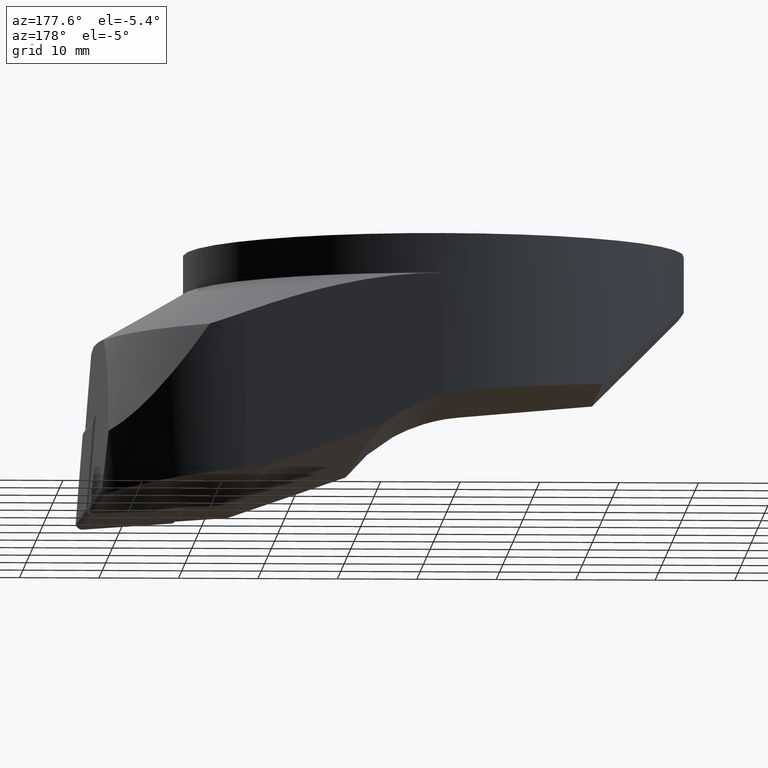
[diagram: clean part render]
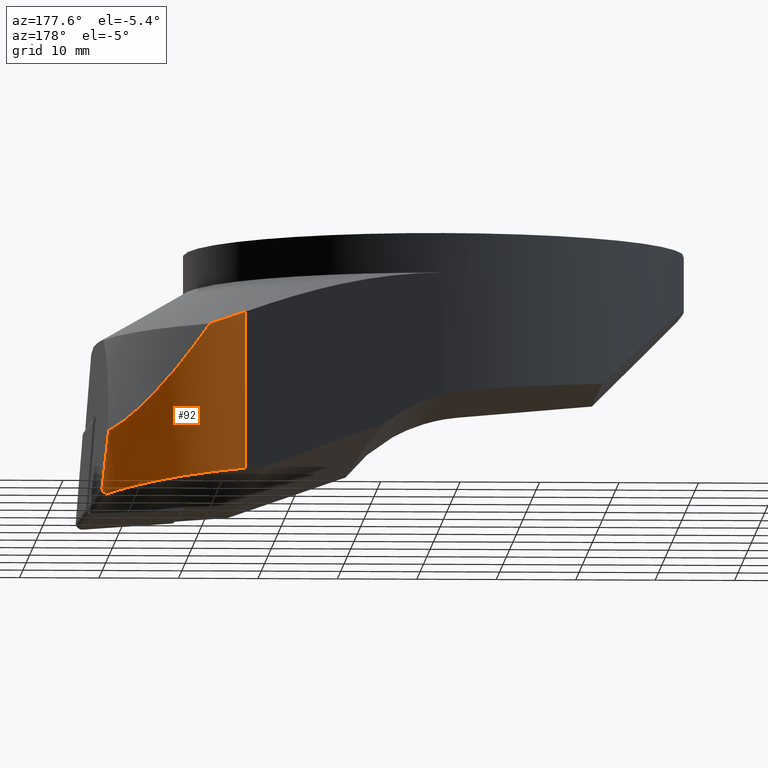
[diagram: same view with one face highlighted and labeled with its STEP entity id]
A machine part, auxiliary view. The second image highlights one B-rep face of the part: STEP entity #92.
In plain terms, the highlighted cylindrical surface (partial cylindrical patch) has radius 20 mm, axis along (-0, 0, 1).
Its self-contained STEP definition (entity closure, byte-faithful):
#92=ADVANCED_FACE('',(#142),#143,.T.);
#142=FACE_OUTER_BOUND('',#206,.T.);
#143=CYLINDRICAL_SURFACE('',#207,20.0);
#206=EDGE_LOOP('',(#388,#389,#390,#391,#392,#393,#394));
#207=AXIS2_PLACEMENT_3D('',#395,#396,#397);
#388=ORIENTED_EDGE('',*,*,#561,.F.);
#389=ORIENTED_EDGE('',*,*,#566,.F.);
#390=ORIENTED_EDGE('',*,*,#567,.F.);
#391=ORIENTED_EDGE('',*,*,#568,.F.);
#392=ORIENTED_EDGE('',*,*,#543,.T.);
#393=ORIENTED_EDGE('',*,*,#569,.F.);
#394=ORIENTED_EDGE('',*,*,#570,.F.);
#395=CARTESIAN_POINT('',(25.0,11.5,-27.9223097986086));
#396=DIRECTION('',(-0.0,0.0,1.0));
#397=DIRECTION('',(0.859167550434077,-0.51169436217444,0.0));
#543=EDGE_CURVE('',#656,#654,#657,.T.);
#561=EDGE_CURVE('',#687,#689,#690,.T.);
#566=EDGE_CURVE('',#696,#687,#698,.T.);
#567=EDGE_CURVE('',#699,#696,#700,.T.);
#568=EDGE_CURVE('',#656,#699,#701,.T.);
#569=EDGE_CURVE('',#702,#654,#703,.T.);
#570=EDGE_CURVE('',#689,#702,#704,.T.);
#654=VERTEX_POINT('',#820);
#656=VERTEX_POINT('',#823);
#657=ELLIPSE('',#824,218.390452394196,20.0);
#687=VERTEX_POINT('',#870);
#689=VERTEX_POINT('',#873);
#690=ELLIPSE('',#874,20.1659385352381,20.0);
#696=VERTEX_POINT('',#882);
#698=LINE('',#893,#894);
#699=VERTEX_POINT('',#895);
#700=B_SPLINE_CURVE_WITH_KNOTS('',3,(#896,#897,#898,#899,#900,#901),.UNSPECIFIED.,.F.,.F.,(4,2,4),(3.85715846001028,5.74178911328001,8.4775333503241),.UNSPECIFIED.);
#701=B_SPLINE_CURVE_WITH_KNOTS('',3,(#902,#903,#904,#905,#906,#907,#908,#909,#910,#911,#912,#913,#914,#915,#916,#917),.UNSPECIFIED.,.F.,.F.,(4,2,2,2,2,2,2,4),(26.1109510316236,27.6243507450446,29.7536378607249,31.8829249764053,35.5950819891459,39.3072390018865,43.019396014627,45.5276441190841),.UNSPECIFIED.);
#702=VERTEX_POINT('',#918);
#703=B_SPLINE_CURVE_WITH_KNOTS('',3,(#919,#920,#921,#922,#923,#924,#925,#926,#927,#928,#929,#930,#931,#932,#933),.UNSPECIFIED.,.F.,.F.,(4,2,2,2,2,3,4),(10.0468372992845,10.3288591227943,10.6075162455719,10.8861733683495,11.0519833790841,11.2177933898187,11.3271584205648),.UNSPECIFIED.);
#704=B_SPLINE_CURVE_WITH_KNOTS('',3,(#934,#935,#936,#937),.UNSPECIFIED.,.F.,.F.,(4,4),(9.85855026086327,10.0468372992845),.UNSPECIFIED.);
#820=CARTESIAN_POINT('',(42.5852476688137,21.0267551887557,-31.2852269450461));
#823=CARTESIAN_POINT('',(41.8201863919239,22.320412642107,-24.2635711891194));
#824=AXIS2_PLACEMENT_3D('',#1052,#1053,#1054);
#870=CARTESIAN_POINT('',(25.0,31.5,-29.7859029356916));
#873=CARTESIAN_POINT('',(42.0716436873853,21.919151689915,-32.2264819615446));
#874=AXIS2_PLACEMENT_3D('',#1087,#1088,#1089);
#882=CARTESIAN_POINT('',(25.0,31.5,-10.0316346940355));
#893=CARTESIAN_POINT('',(25.0,31.5,-10.0316346940355));
#894=VECTOR('',#1095,20.1051555721392);
#895=CARTESIAN_POINT('',(29.4512462150672,30.9983693454825,-11.5));
#896=CARTESIAN_POINT('',(29.4512462150672,30.9983693454825,-11.5));
#897=CARTESIAN_POINT('',(28.8547898446183,31.1345332530571,-11.3198002116523));
#898=CARTESIAN_POINT('',(28.2523575804097,31.2432334774766,-11.1313465735817));
#899=CARTESIAN_POINT('',(26.7680451375148,31.441419094313,-10.6500527578228));
#900=CARTESIAN_POINT('',(25.8826901717809,31.5,-10.3484448479002));
#901=CARTESIAN_POINT('',(25.0,31.5,-10.0316346940355));
#902=CARTESIAN_POINT('',(41.8201863919239,22.320412642107,-24.2635711891194));
#903=CARTESIAN_POINT('',(41.5386844360627,22.7580036586318,-24.1473489734073));
#904=CARTESIAN_POINT('',(41.2411248201253,23.1826988003321,-23.9991149772399));
#905=CARTESIAN_POINT('',(40.4998929520124,24.1596671597686,-23.5748307826488));
#906=CARTESIAN_POINT('',(40.0452306675594,24.6942809375487,-23.2706201639303));
#907=CARTESIAN_POINT('',(39.1294086899895,25.6706677807837,-22.5874070547748));
#908=CARTESIAN_POINT('',(38.6683116967142,26.1126169081332,-22.2085721524252));
#909=CARTESIAN_POINT('',(37.4484016005857,27.1877367133264,-21.1374408521392));
#910=CARTESIAN_POINT('',(36.6399120620046,27.7929350199541,-20.3491418322813));
#911=CARTESIAN_POINT('',(35.0028898544862,28.8461661155331,-18.6155059005941));
#912=CARTESIAN_POINT('',(34.1743983612639,29.2943106041819,-17.6701979705059));
#913=CARTESIAN_POINT('',(32.5420781104469,30.0451915163858,-15.690207472594));
#914=CARTESIAN_POINT('',(31.7380091014324,30.3481599014561,-14.6552419392213));
#915=CARTESIAN_POINT('',(30.4446790255744,30.7523766728924,-12.907753267095));
#916=CARTESIAN_POINT('',(29.937837116258,30.8872864200934,-12.1995750916439));
#917=CARTESIAN_POINT('',(29.4512462150672,30.9983693454825,-11.5));
#918=CARTESIAN_POINT('',(42.1685833976058,21.7586879181578,-32.1685832028458));
#919=CARTESIAN_POINT('',(42.1685750664737,21.7586420446738,-32.1686858316579));
#920=CARTESIAN_POINT('',(42.2156772801058,21.6798108918702,-32.1372731627544));
#921=CARTESIAN_POINT('',(42.2607565507274,21.6031439560181,-32.1018832233646));
#922=CARTESIAN_POINT('',(42.3455549190035,21.4568462605729,-32.0222892047323));
#923=CARTESIAN_POINT('',(42.389995776277,21.379010989852,-31.9734703938536));
#924=CARTESIAN_POINT('',(42.4709338059241,21.2351570696099,-31.8579877875384));
#925=CARTESIAN_POINT('',(42.5073912010078,21.1692553445811,-31.7911505615761));
#926=CARTESIAN_POINT('',(42.5510960607158,21.0895868633848,-31.674133754688));
#927=CARTESIAN_POINT('',(42.5661782549663,21.06189483752,-31.6223939826104));
#928=CARTESIAN_POINT('',(42.5864532658905,21.024553159917,-31.5117186326205));
#929=CARTESIAN_POINT('',(42.5915154635075,21.0151764932227,-31.4526672586022));
#930=CARTESIAN_POINT('',(42.5915154635075,21.0151764932227,-31.4068047516888));
#931=CARTESIAN_POINT('',(42.5915154635075,21.0151764932227,-31.3609422447753));
#932=CARTESIAN_POINT('',(42.5894266288736,21.0190413296088,-31.3229484434161));
#933=CARTESIAN_POINT('',(42.5852476688137,21.0267551887557,-31.2852269450461));
#934=CARTESIAN_POINT('',(42.0716488658272,21.9191545824063,-32.2264827864236));
#935=CARTESIAN_POINT('',(42.104779400911,21.8648672459992,-32.2088572887525));
#936=CARTESIAN_POINT('',(42.1371280805725,21.8112723131821,-32.1896579618394));
#937=CARTESIAN_POINT('',(42.1685750664737,21.7586420446738,-32.1686858316579));
#1052=CARTESIAN_POINT('',(25.0,11.4999999999999,168.463376123449));
#1053=DIRECTION('',(-0.991771345779424,-0.089458744898784,-0.0915790950599795));
#1054=DIRECTION('',(0.0912087994725429,0.00822712287389799,-0.995797805454499));
#1087=CARTESIAN_POINT('',(25.0,11.5,-31.5899224867424));
#1088=DIRECTION('',(-0.0915790950598927,0.0894587448979133,-0.99177134577951));
#1089=DIRECTION('',(0.709453209284592,-0.693027089041326,-0.128021864111951));
#1095=DIRECTION('',(0.0,0.0,-1.0));